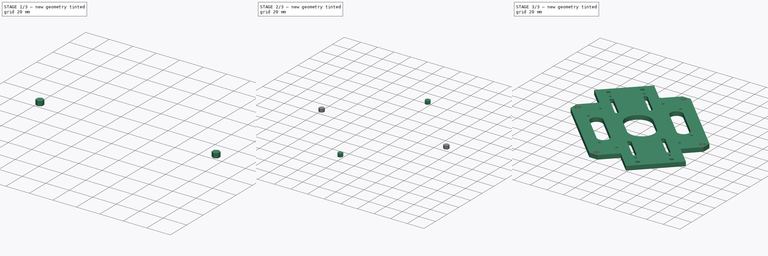
[diagram: build sequence overview — one tinted view per stage of 3, left to right]
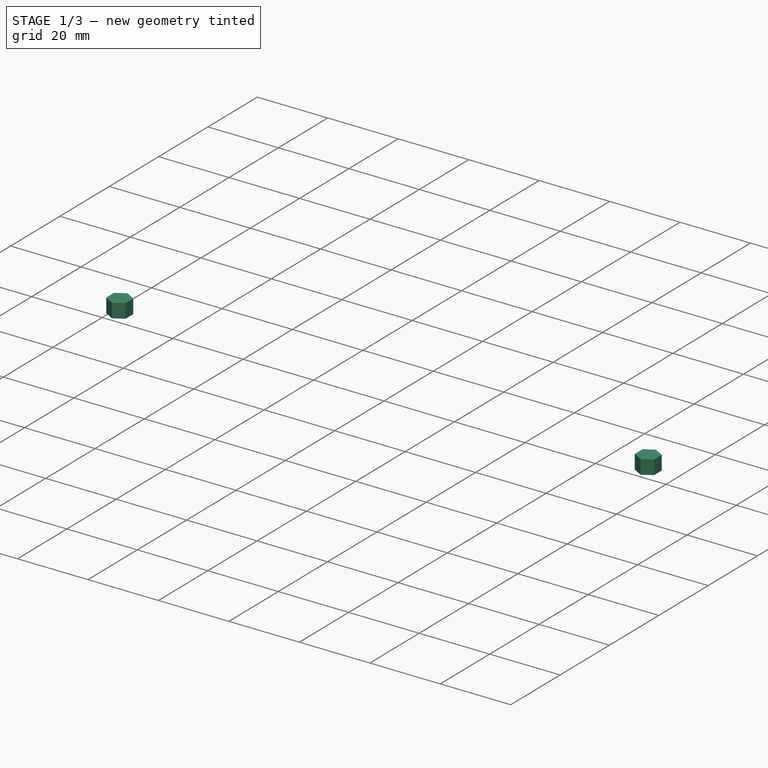
[diagram: stage 1 of 3 — iso view after this stage's code; geometry added in this stage tinted green]
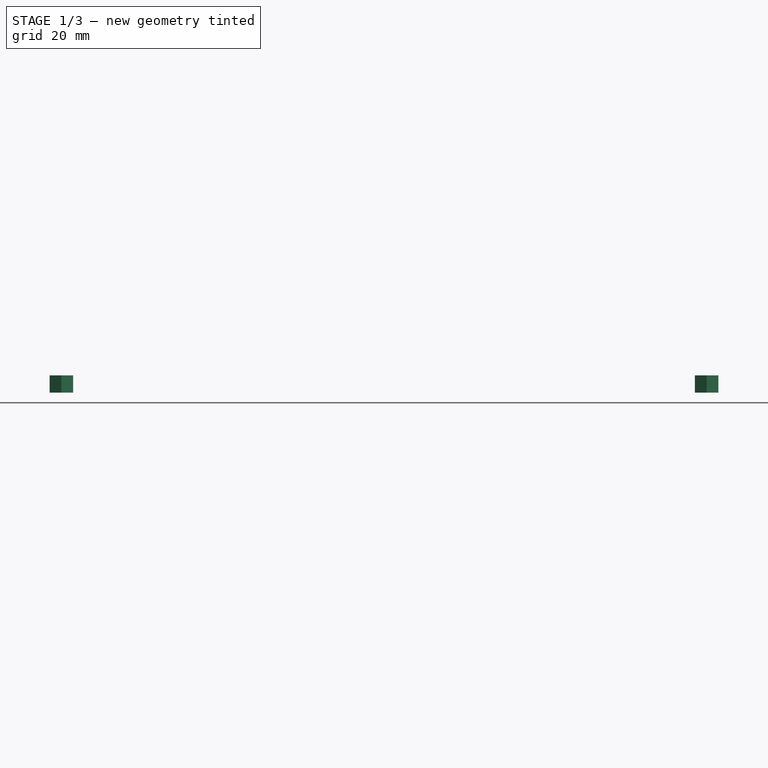
[diagram: stage 1 of 3 — front view after this stage's code; geometry added in this stage tinted green]
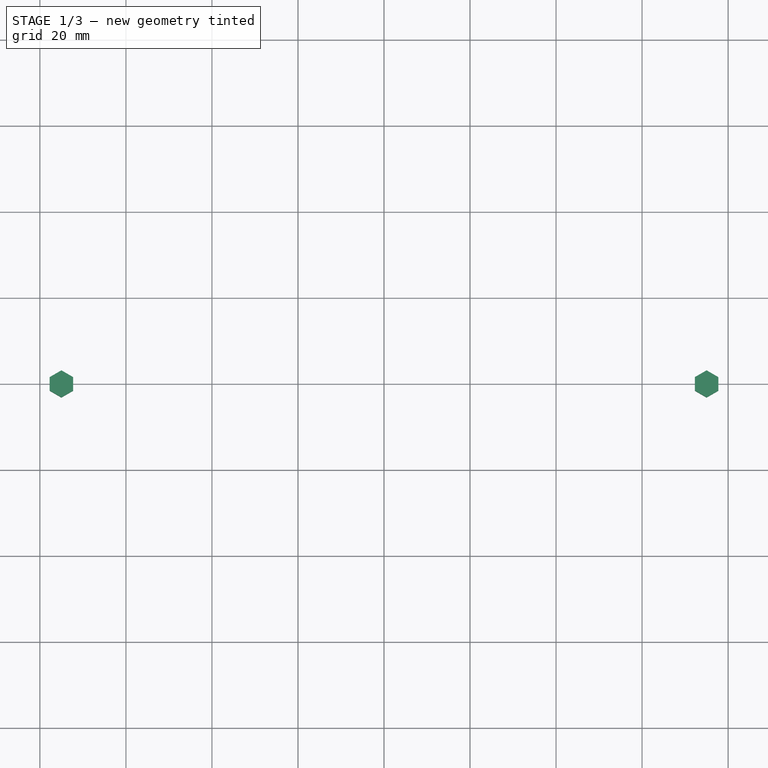
[diagram: stage 1 of 3 — top view after this stage's code; geometry added in this stage tinted green]
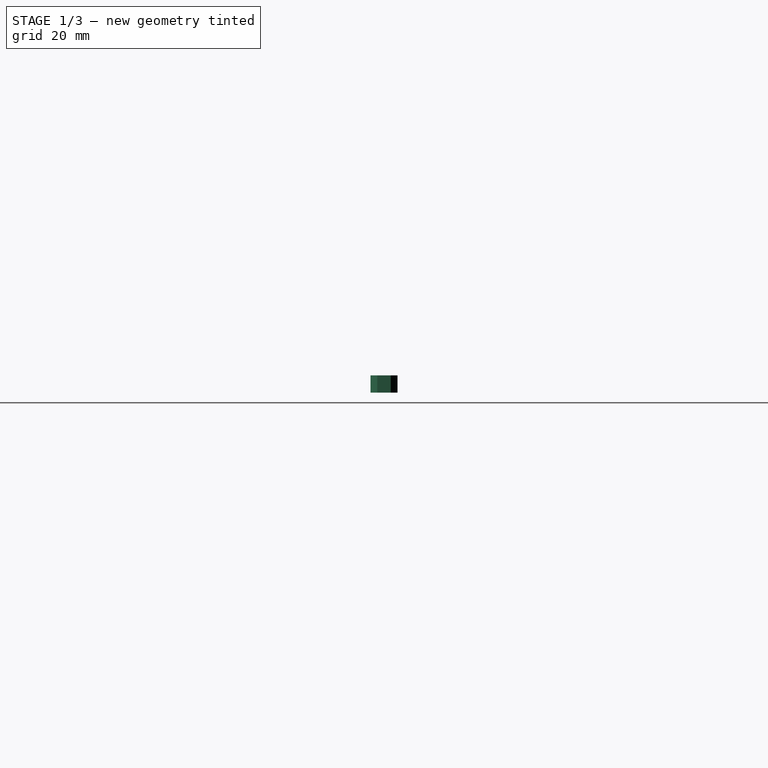
[diagram: stage 1 of 3 — right view after this stage's code; geometry added in this stage tinted green]
FCSTD DOCUMENT  (FreeCAD 0.16R6698 (Git))
Label: body-bottom
License: All rights reserved
LicenseURL: http://en.wikipedia.org/wiki/All_rights_reserved
objects: Part::Extrusion×5, Sketcher::SketchObject×2, Part::MultiFuse×1, Part::Cut×1
note: 9 computed .brp shape members not serialized (recipe doc carries the construction recipe); baked Part::Feature solids carry a one-line shape summary decoded from their .brp

FEATURE [Part::Extrusion] Extrude003
  Base = -> Sketch001
  Dir = (0,0,4)
  Placement = pos=(-80,0,2) rot=(0,0,1;1.5708rad)
  Solid = true
FEATURE [Part::Extrusion] Extrude004
  Base = -> Sketch001
  Dir = (0,0,4)
  Placement = pos=(80,0,2) rot=(0,0,-1;1.5708rad)
  Solid = true
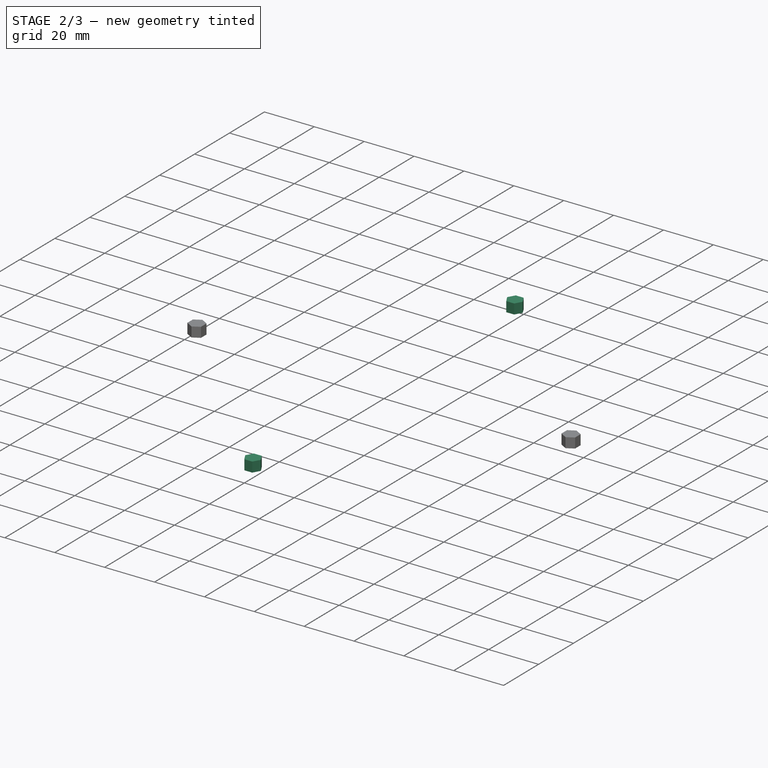
[diagram: stage 2 of 3 — iso view after this stage's code; geometry added in this stage tinted green]
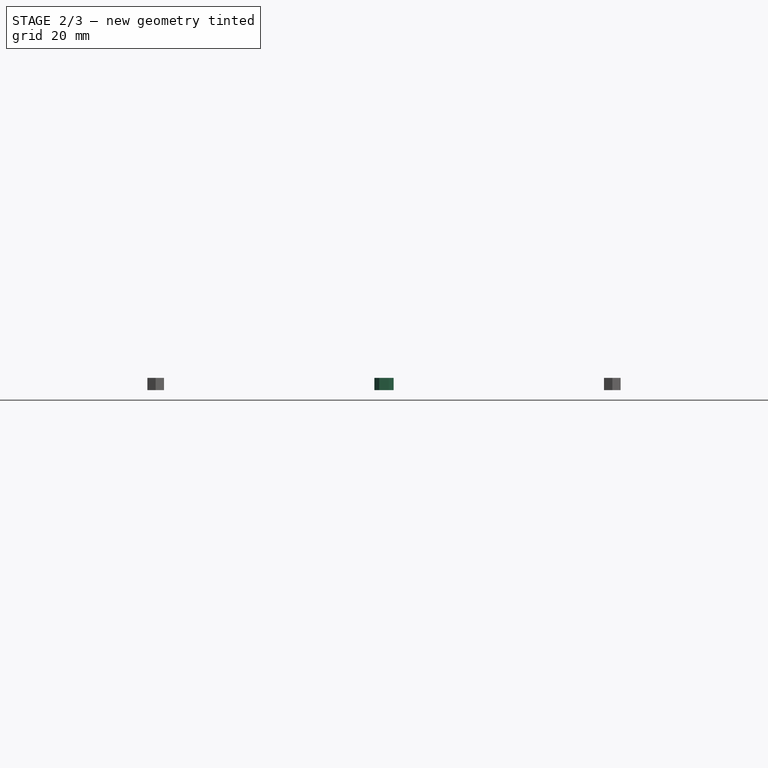
[diagram: stage 2 of 3 — front view after this stage's code; geometry added in this stage tinted green]
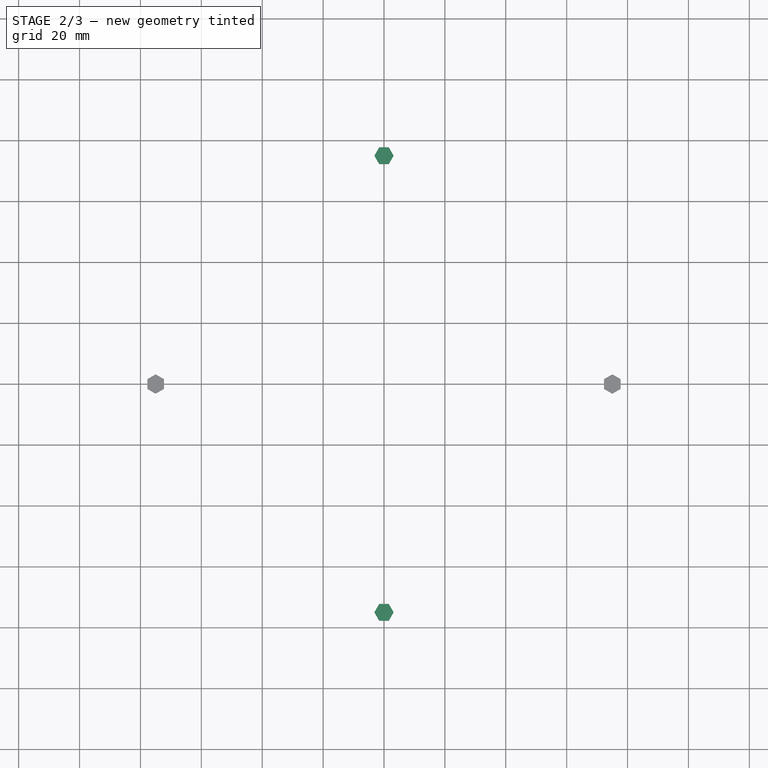
[diagram: stage 2 of 3 — top view after this stage's code; geometry added in this stage tinted green]
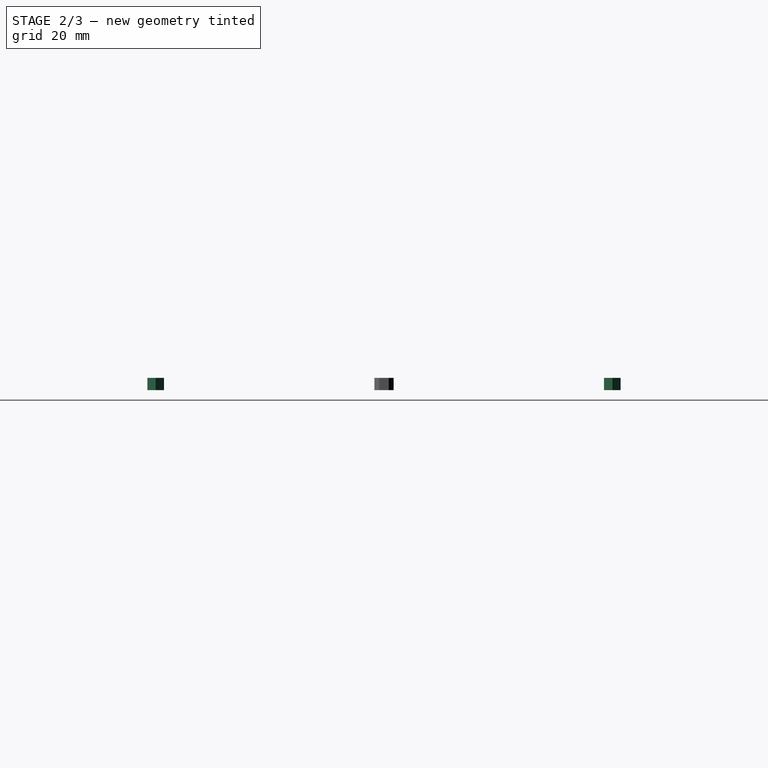
[diagram: stage 2 of 3 — right view after this stage's code; geometry added in this stage tinted green]
FEATURE [Sketcher::SketchObject] Sketch001
  sketch-geometry (7):
    g0: LineSegment StartX=1.575 StartY=-7.72798 StartZ=0 EndX=3.15 EndY=-5 EndZ=0
    g1: LineSegment StartX=3.15 StartY=-5 StartZ=0 EndX=1.575 EndY=-2.27202 EndZ=0
    g2: LineSegment StartX=1.575 StartY=-2.27202 StartZ=0 EndX=-1.575 EndY=-2.27202 EndZ=0
    g3: LineSegment StartX=-1.575 StartY=-2.27202 StartZ=0 EndX=-3.15 EndY=-5 EndZ=0
    g4: LineSegment StartX=-3.15 StartY=-5 StartZ=0 EndX=-1.575 EndY=-7.72798 EndZ=0
    g5: LineSegment StartX=-1.575 StartY=-7.72798 StartZ=0 EndX=1.575 EndY=-7.72798 EndZ=0
    g6: Circle [constr] CenterX=0 CenterY=-5 CenterZ=0 NormalX=0 NormalY=0 NormalZ=1 Radius=3.15
  constraints (17):
    c: Coincident(g0,g1)
    c: Coincident(g1,g2)
    c: Coincident(g2,g3)
    c: Coincident(g3,g4)
    c: Coincident(g4,g5)
    c: Coincident(g5,g0)
    c: Equal(g0, g1-g5) x5
    c: PointOnObject(g0,g6)
    c: PointOnObject(g1,g6)
    c: PointOnObject(g2,g6)
    c: PointOnObject(g3,g6)
    c: PointOnObject(g4,g6)
    c: PointOnObject(g5,g6)
    c: PointOnObject(g6,g-2)
    c: Horizontal(g5)
    c: DistanceY(g6,g-1) = 5
    c: Radius(g6) = 3.15
FEATURE [Part::Extrusion] Extrude001
  Base = -> Sketch001
  Dir = (0,0,4)
  Placement = pos=(0,80,2) rot=(0,0,1;0rad)
  Solid = true
FEATURE [Part::Extrusion] Extrude002
  Base = -> Sketch001
  Dir = (0,0,4)
  Placement = pos=(0,-80,2) rot=(0,0,1;3.14159rad)
  Solid = true
FEATURE [Part::MultiFuse] Fusion  label="FusionHexNuts"
  Shapes = -> [Extrude001,Extrude002,Extrude003,Extrude004]
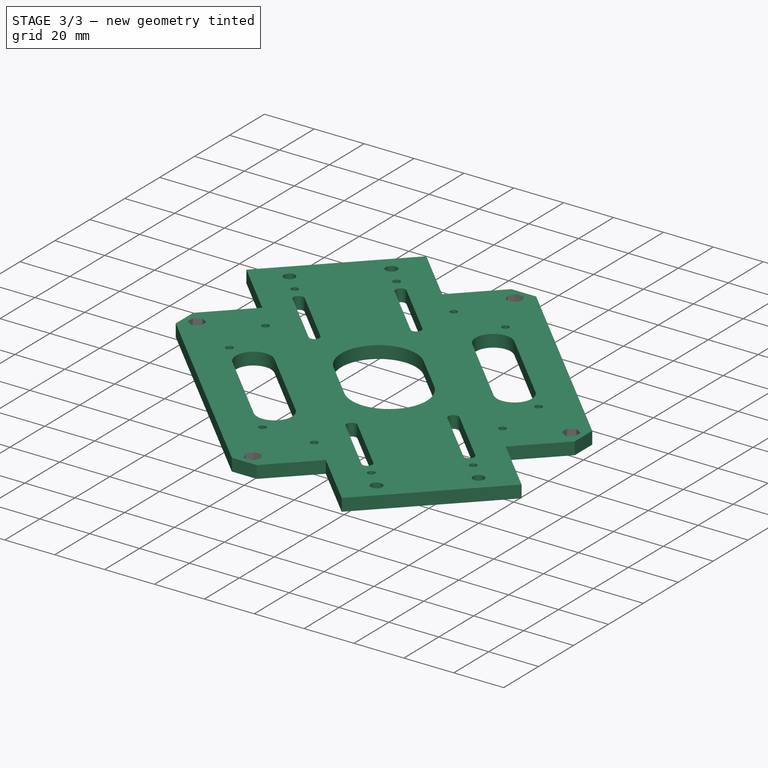
[diagram: stage 3 of 3 — iso view after this stage's code; geometry added in this stage tinted green]
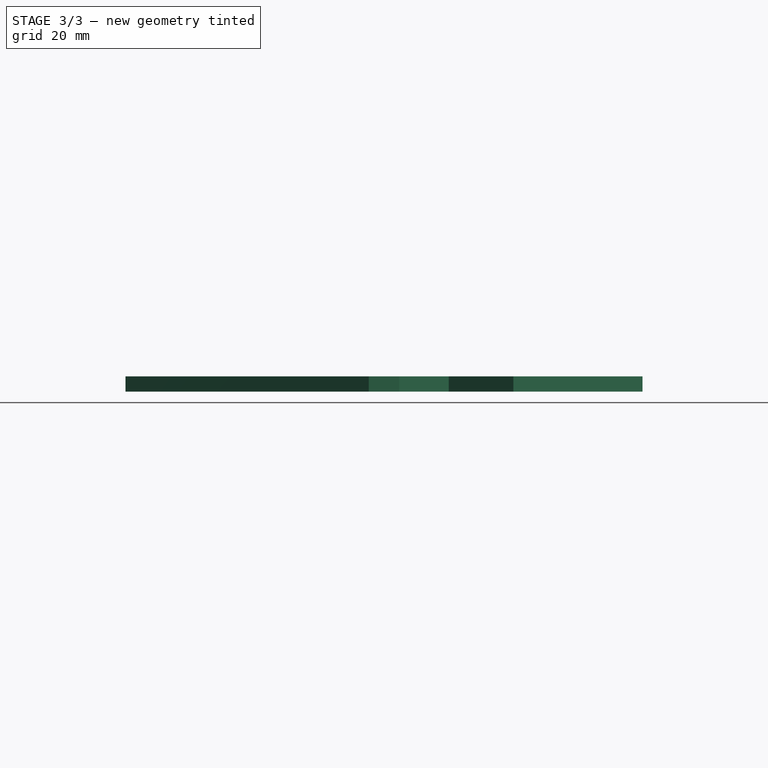
[diagram: stage 3 of 3 — front view after this stage's code; geometry added in this stage tinted green]
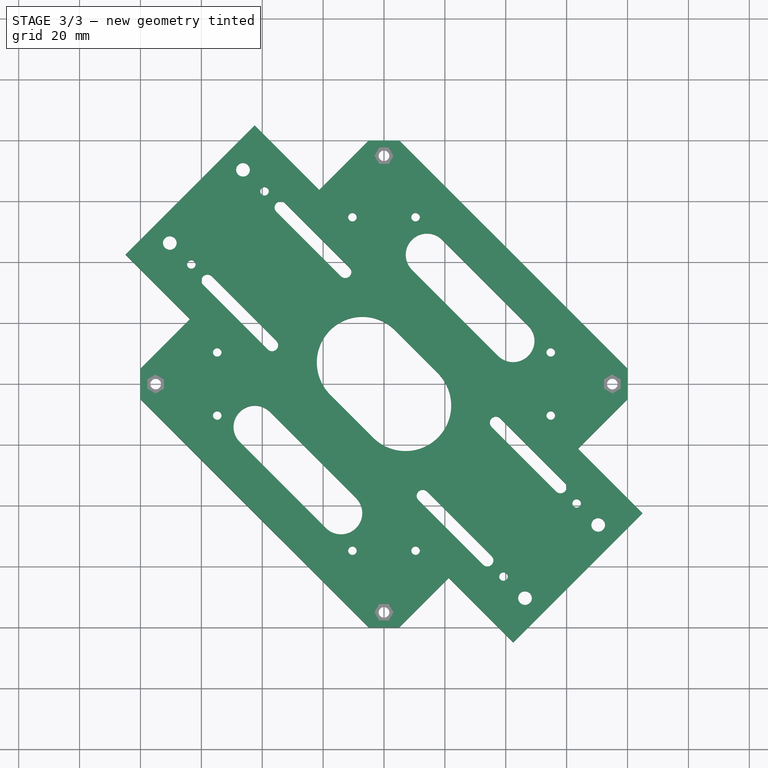
[diagram: stage 3 of 3 — top view after this stage's code; geometry added in this stage tinted green]
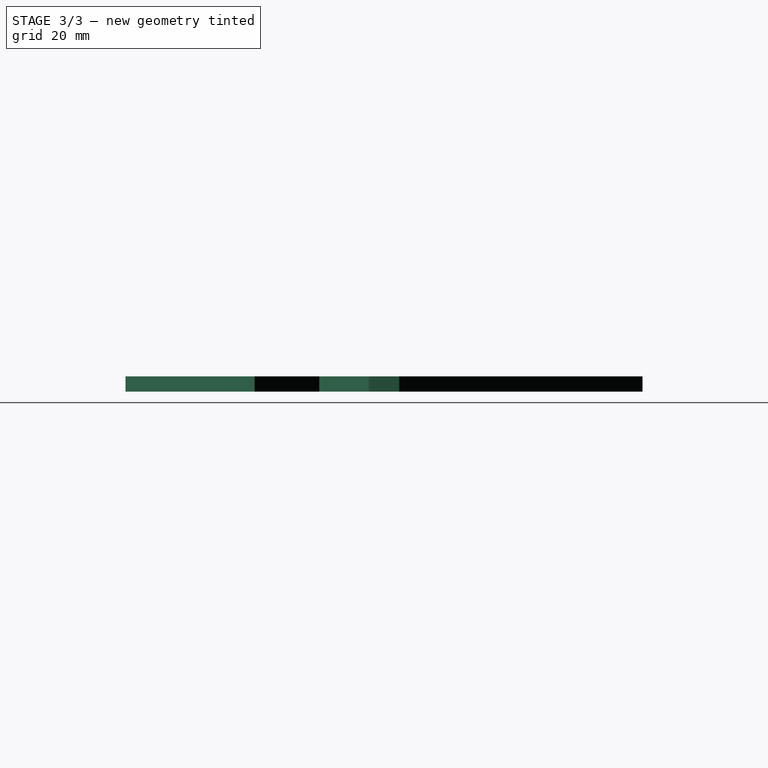
[diagram: stage 3 of 3 — right view after this stage's code; geometry added in this stage tinted green]
FEATURE [Sketcher::SketchObject] Sketch
  sketch-geometry (91):
    g0: Circle [constr] CenterX=0 CenterY=0 CenterZ=0 NormalX=0 NormalY=0 NormalZ=1 Radius=80.1561
    g1: LineSegment StartX=-5 StartY=80 StartZ=0 EndX=5 EndY=80 EndZ=0
    g2: LineSegment StartX=5 StartY=80 StartZ=0 EndX=80 EndY=5 EndZ=0
    g3: LineSegment StartX=80 StartY=5 StartZ=0 EndX=80 EndY=-5 EndZ=0
    g4: LineSegment StartX=5 StartY=-80 StartZ=0 EndX=-5 EndY=-80 EndZ=0
    g5: LineSegment StartX=-5 StartY=-80 StartZ=0 EndX=-80 EndY=-5 EndZ=0
    g6: LineSegment StartX=-80 StartY=-5 StartZ=0 EndX=-80 EndY=5 EndZ=0
    g7: Circle [constr] CenterX=0 CenterY=0 CenterZ=0 NormalX=0 NormalY=0 NormalZ=1 Radius=75
    g8: Circle CenterX=0 CenterY=75 CenterZ=0 NormalX=0 NormalY=0 NormalZ=1 Radius=1.75
    g9: Circle CenterX=-75 CenterY=0 CenterZ=0 NormalX=0 NormalY=0 NormalZ=1 Radius=1.75
    g10: Circle CenterX=75 CenterY=0 CenterZ=0 NormalX=0 NormalY=0 NormalZ=1 Radius=1.75
    g11: Circle CenterX=0 CenterY=-75 CenterZ=0 NormalX=0 NormalY=0 NormalZ=1 Radius=1.75
    g12: LineSegment [constr] StartX=-14.1421 StartY=-42.4264 StartZ=0 EndX=-42.4264 EndY=-14.1421 EndZ=0
    g13: ArcOfCircle CenterX=-42.4264 CenterY=-14.1421 CenterZ=0 NormalX=0 NormalY=0 NormalZ=1 Radius=7 StartAngle=0.785398 EndAngle=3.92699
    g14: ArcOfCircle CenterX=-14.1421 CenterY=-42.4264 CenterZ=0 NormalX=0 NormalY=0 NormalZ=1 Radius=7 StartAngle=3.92699 EndAngle=7.06858
    g15: LineSegment StartX=-47.3762 StartY=-19.0919 StartZ=0 EndX=-19.0919 EndY=-47.3762 EndZ=0
    g16: LineSegment StartX=-37.4767 StartY=-9.19239 StartZ=0 EndX=-9.19239 EndY=-37.4767 EndZ=0
    g17: ArcOfCircle CenterX=14.1421 CenterY=42.4264 CenterZ=0 NormalX=0 NormalY=0 NormalZ=1 Radius=7 StartAngle=0.785398 EndAngle=3.92699
    g18: ArcOfCircle CenterX=42.4264 CenterY=14.1421 CenterZ=0 NormalX=0 NormalY=0 NormalZ=1 Radius=7 StartAngle=3.92699 EndAngle=7.06858
    g19: LineSegment StartX=9.19239 StartY=37.4767 StartZ=0 EndX=37.4767 EndY=9.19239 EndZ=0
    g20: LineSegment StartX=19.0919 StartY=47.3762 StartZ=0 EndX=47.3762 EndY=19.0919 EndZ=0
    g21: LineSegment StartX=-5 StartY=80 StartZ=0 EndX=-21.2868 EndY=63.7132 EndZ=0
    g22: LineSegment StartX=-21.2868 StartY=63.7132 StartZ=0 EndX=-42.5 EndY=84.9264 EndZ=0
    g23: LineSegment StartX=-42.5 StartY=84.9264 StartZ=0 EndX=-84.9264 EndY=42.5 EndZ=0
    g24: LineSegment StartX=-84.9264 StartY=42.5 StartZ=0 EndX=-63.7132 EndY=21.2868 EndZ=0
    g25: LineSegment StartX=-63.7132 StartY=21.2868 StartZ=0 EndX=-80 EndY=5 EndZ=0
    g26: LineSegment StartX=80 StartY=-5 StartZ=0 EndX=63.7132 EndY=-21.2868 EndZ=0
    g27: LineSegment StartX=63.7132 StartY=-21.2868 StartZ=0 EndX=84.9264 EndY=-42.5 EndZ=0
    g28: LineSegment StartX=84.9264 StartY=-42.5 StartZ=0 EndX=42.5 EndY=-84.9264 EndZ=0
    g29: LineSegment StartX=42.5 StartY=-84.9264 StartZ=0 EndX=21.2868 EndY=-63.7132 EndZ=0
    g30: LineSegment StartX=21.2868 StartY=-63.7132 StartZ=0 EndX=5 EndY=-80 EndZ=0
    g31: Circle [constr] CenterX=0 CenterY=0 CenterZ=0 NormalX=0 NormalY=0 NormalZ=1 Radius=55.75
    g32: LineSegment [constr] StartX=-54.7761 StartY=10.375 StartZ=0 EndX=-54.7761 EndY=-10.375 EndZ=0
    g33: LineSegment [constr] StartX=-10.375 StartY=54.7761 StartZ=0 EndX=10.375 EndY=54.7761 EndZ=0
    g34: LineSegment [constr] StartX=54.7761 StartY=10.375 StartZ=0 EndX=54.7761 EndY=-10.375 EndZ=0
    g35: LineSegment [constr] StartX=-10.375 StartY=-54.7761 StartZ=0 EndX=10.375 EndY=-54.7761 EndZ=0
    g36: Circle CenterX=-54.7761 CenterY=10.375 CenterZ=0 NormalX=0 NormalY=0 NormalZ=1 Radius=1.4
    g37: Circle CenterX=-54.7761 CenterY=-10.375 CenterZ=0 NormalX=0 NormalY=0 NormalZ=1 Radius=1.4
    g38: Circle CenterX=-10.375 CenterY=54.7761 CenterZ=0 NormalX=0 NormalY=0 NormalZ=1 Radius=1.4
    g39: Circle CenterX=10.375 CenterY=54.7761 CenterZ=0 NormalX=0 NormalY=0 NormalZ=1 Radius=1.4
    g40: Circle CenterX=54.7761 CenterY=10.375 CenterZ=0 NormalX=0 NormalY=0 NormalZ=1 Radius=1.4
    g41: Circle CenterX=54.7761 CenterY=-10.375 CenterZ=0 NormalX=0 NormalY=0 NormalZ=1 Radius=1.4
    g42: Circle CenterX=-10.375 CenterY=-54.7761 CenterZ=0 NormalX=0 NormalY=0 NormalZ=1 Radius=1.4
    g43: Circle CenterX=10.375 CenterY=-54.7761 CenterZ=0 NormalX=0 NormalY=0 NormalZ=1 Radius=1.4
    g44: LineSegment [constr] StartX=-88.3883 StartY=88.3883 StartZ=0 EndX=88.3883 EndY=-88.3883 EndZ=0
    g45: LineSegment [constr] StartX=-54.8008 StartY=54.8008 StartZ=0 EndX=-66.8216 EndY=42.78 EndZ=0
    g46: LineSegment [constr] StartX=-54.8008 StartY=54.8008 StartZ=0 EndX=-42.78 EndY=66.8216 EndZ=0
    g47: LineSegment [constr] StartX=-70.3571 StartY=46.3155 StartZ=0 EndX=-63.2861 EndY=39.2444 EndZ=0
    g48: LineSegment [constr] StartX=-46.3155 StartY=70.3571 StartZ=0 EndX=-39.2444 EndY=63.2861 EndZ=0
    g49: LineSegment [constr] StartX=54.8008 StartY=-54.8008 StartZ=0 EndX=42.78 EndY=-66.8216 EndZ=0
    g50: LineSegment [constr] StartX=54.8008 StartY=-54.8008 StartZ=0 EndX=66.8216 EndY=-42.78 EndZ=0
    g51: LineSegment [constr] StartX=39.2444 StartY=-63.2861 StartZ=0 EndX=46.3155 EndY=-70.3571 EndZ=0
    g52: LineSegment [constr] StartX=63.2861 StartY=-39.2444 StartZ=0 EndX=70.3571 EndY=-46.3155 EndZ=0
    g53: Circle CenterX=39.2444 CenterY=-63.2861 CenterZ=0 NormalX=0 NormalY=0 NormalZ=1 Radius=1.4
    g54: Circle CenterX=63.2861 CenterY=-39.2444 CenterZ=0 NormalX=0 NormalY=0 NormalZ=1 Radius=1.4
    g55: Circle CenterX=-63.2861 CenterY=39.2444 CenterZ=0 NormalX=0 NormalY=0 NormalZ=1 Radius=1.4
    g56: Circle CenterX=-39.2444 CenterY=63.2861 CenterZ=0 NormalX=0 NormalY=0 NormalZ=1 Radius=1.4
    g57: Circle CenterX=-70.3571 CenterY=46.3155 CenterZ=0 NormalX=0 NormalY=0 NormalZ=1 Radius=2.25
    g58: Circle CenterX=-46.3155 CenterY=70.3571 CenterZ=0 NormalX=0 NormalY=0 NormalZ=1 Radius=2.25
    g59: Circle CenterX=46.3155 CenterY=-70.3571 CenterZ=0 NormalX=0 NormalY=0 NormalZ=1 Radius=2.25
    g60: Circle CenterX=70.3571 CenterY=-46.3155 CenterZ=0 NormalX=0 NormalY=0 NormalZ=1 Radius=2.25
    g61: LineSegment [constr] StartX=28.2843 StartY=28.2843 StartZ=0 EndX=-28.2843 EndY=-28.2843 EndZ=0
    g62: LineSegment [constr] StartX=14.1421 StartY=42.4264 StartZ=0 EndX=42.4264 EndY=14.1421 EndZ=0
    g63: GeomPoint [constr] X=-12.0208 Y=-12.0208 Z=0
    g64: GeomPoint [constr] X=12.0208 Y=12.0208 Z=0
    g65: LineSegment [constr] StartX=-57.9828 StartY=33.9411 StartZ=0 EndX=33.9411 EndY=-57.9828 EndZ=0
    g66: LineSegment [constr] StartX=-33.9411 StartY=57.9828 StartZ=0 EndX=57.9828 EndY=-33.9411 EndZ=0
    g67: GeomPoint [constr] X=-36.7696 Y=12.7279 Z=0
    g68: GeomPoint [constr] X=12.7279 Y=-36.7696 Z=0
    g69: GeomPoint [constr] X=-12.7279 Y=36.7696 Z=0
    g70: GeomPoint [constr] X=36.7696 Y=-12.7279 Z=0
    g71: ArcOfCircle CenterX=-57.9828 CenterY=33.9411 CenterZ=0 NormalX=0 NormalY=0 NormalZ=1 Radius=2 StartAngle=0.785398 EndAngle=3.92699
    g72: ArcOfCircle CenterX=-36.7696 CenterY=12.7279 CenterZ=0 NormalX=0 NormalY=0 NormalZ=1 Radius=2 StartAngle=3.92699 EndAngle=7.06858
    g73: LineSegment StartX=-59.397 StartY=32.5269 StartZ=0 EndX=-38.1838 EndY=11.3137 EndZ=0
    g74: LineSegment StartX=-56.5685 StartY=35.3553 StartZ=0 EndX=-35.3553 EndY=14.1421 EndZ=0
    g75: ArcOfCircle CenterX=-33.9411 CenterY=57.9828 CenterZ=0 NormalX=0 NormalY=0 NormalZ=1 Radius=2 StartAngle=0.785398 EndAngle=3.92699
    g76: ArcOfCircle CenterX=-12.7279 CenterY=36.7696 CenterZ=0 NormalX=0 NormalY=0 NormalZ=1 Radius=2 StartAngle=3.92699 EndAngle=7.06858
    g77: LineSegment StartX=-35.3553 StartY=56.5685 StartZ=0 EndX=-14.1421 EndY=35.3553 EndZ=0
    g78: LineSegment StartX=-32.5269 StartY=59.397 StartZ=0 EndX=-11.3137 EndY=38.1838 EndZ=0
    g79: ArcOfCircle CenterX=12.7279 CenterY=-36.7696 CenterZ=0 NormalX=0 NormalY=0 NormalZ=1 Radius=2 StartAngle=0.785398 EndAngle=3.92699
    g80: ArcOfCircle CenterX=33.9411 CenterY=-57.9828 CenterZ=0 NormalX=0 NormalY=0 NormalZ=1 Radius=2 StartAngle=3.92699 EndAngle=7.06858
    g81: LineSegment StartX=11.3137 StartY=-38.1838 StartZ=0 EndX=32.5269 EndY=-59.397 EndZ=0
    g82: LineSegment StartX=14.1421 StartY=-35.3553 StartZ=0 EndX=35.3553 EndY=-56.5685 EndZ=0
    g83: ArcOfCircle CenterX=57.9828 CenterY=-33.9411 CenterZ=0 NormalX=0 NormalY=0 NormalZ=1 Radius=2 StartAngle=3.92699 EndAngle=7.06858
    g84: ArcOfCircle CenterX=36.7696 CenterY=-12.7279 CenterZ=0 NormalX=0 NormalY=0 NormalZ=1 Radius=2 StartAngle=0.785398 EndAngle=3.92699
    g85: LineSegment StartX=59.397 StartY=-32.5269 StartZ=0 EndX=38.1838 EndY=-11.3137 EndZ=0
    g86: LineSegment StartX=56.5685 StartY=-35.3553 StartZ=0 EndX=35.3553 EndY=-14.1421 EndZ=0
    g87: ArcOfCircle CenterX=-7.07107 CenterY=7.07107 CenterZ=0 NormalX=0 NormalY=0 NormalZ=1 Radius=15 StartAngle=0.785398 EndAngle=3.92699
    g88: ArcOfCircle CenterX=7.07107 CenterY=-7.07107 CenterZ=0 NormalX=0 NormalY=0 NormalZ=1 Radius=15 StartAngle=3.92699 EndAngle=7.06858
    g89: LineSegment StartX=-17.6777 StartY=-3.53553 StartZ=0 EndX=-3.53553 EndY=-17.6777 EndZ=0
    g90: LineSegment StartX=3.53553 StartY=17.6777 StartZ=0 EndX=17.6777 EndY=3.53553 EndZ=0
  constraints (234):
    c: Coincident(g0,g-1)
    c: PointOnObject(g1,g0)
    c: PointOnObject(g1,g0)
    c: Horizontal(g1)
    c: Coincident(g1,g2)
    c: PointOnObject(g2,g0)
    c: Coincident(g2,g3)
    c: PointOnObject(g3,g0)
    c: Vertical(g3)
    c: PointOnObject(g4,g0)
    c: PointOnObject(g4,g0)
    c: Horizontal(g4)
    c: Coincident(g4,g5)
    c: PointOnObject(g5,g0)
    c: Coincident(g5,g6)
    c: PointOnObject(g6,g0)
    c: Vertical(g6)
    c: Equal(g6,g4)
    c: Equal(g4,g3)
    c: Equal(g3,g1)
    c: Distance(g4) = 10
    c: DistanceX(g5,g3) = 160
    c: Coincident(g7,g-1)
    c: Radius(g7) = 75
    c: PointOnObject(g8,g7)
    c: PointOnObject(g9,g7)
    c: PointOnObject(g11,g7)
    c: PointOnObject(g9,g-1)
    c: PointOnObject(g8,g-2)
    c: PointOnObject(g11,g-2)
    c: PointOnObject(g10,g7)
    c: PointOnObject(g10,g-1)
    c: Radius(g9) = 1.75
    c: Equal(g9,g11)
    c: Equal(g9,g10)
    c: Equal(g9,g8)
    c: Tangent(g13,g16) = 1.5708
    c: Tangent(g13,g15) = -1.5708
    c: Tangent(g15,g14) = -1.5708
    c: Tangent(g16,g14) = 1.5708
    c: Equal(g13,g14)
    c: Radius(g13) = 7
    c: Tangent(g17,g20) = 1.5708
    c: Tangent(g17,g19) = -1.5708
    c: Tangent(g19,g18) = -1.5708
    c: Tangent(g20,g18) = 1.5708
    c: Equal(g17,g18)
    c: Equal(g17,g13)
    c: Coincident(g1,g21)
    c: Coincident(g21,g22)
    c: Coincident(g22,g23)
    c: Coincident(g23,g24)
    c: Coincident(g24,g25)
    c: Coincident(g25,g6)
    c: Equal(g25,g21)
    c: Equal(g24,g22)
    c: Distance(g23) = 60
    c: Distance(g22) = 30
    c: Coincident(g3,g26)
    c: Coincident(g26,g27)
    c: Coincident(g27,g28)
    c: Coincident(g28,g29)
    c: Coincident(g29,g30)
    c: Coincident(g30,g4)
    c: Equal(g30,g26)
    c: Equal(g29,g27)
    c: Equal(g28,g23)
    c: Equal(g29,g24)
    c: Distance(g12) = 40
    c: Coincident(g31,g-1)
    c: Radius(g31) = 55.75
    c: PointOnObject(g32,g31)
    c: PointOnObject(g32,g31)
    c: Vertical(g32)
    c: Distance(g32) = 20.75
    c: PointOnObject(g33,g31)
    c: PointOnObject(g33,g31)
    c: Horizontal(g33)
    c: PointOnObject(g34,g31)
    c: PointOnObject(g34,g31)
    c: Vertical(g34)
    c: PointOnObject(g35,g31)
    c: PointOnObject(g35,g31)
    c: Horizontal(g35)
    c: Equal(g35,g34)
    c: Equal(g34,g33)
    c: Equal(g33,g32)
    c: Coincident(g36,g32)
    c: Coincident(g37,g32)
    c: Coincident(g38,g33)
    c: Coincident(g39,g33)
    c: Coincident(g40,g34)
    c: Coincident(g41,g34)
    c: Coincident(g42,g35)
    c: Coincident(g43,g35)
    c: Radius(g37) = 1.4
    c: Equal(g37,g36)
    c: Equal(g37,g42)
    c: Equal(g37,g43)
    c: Equal(g37,g41)
    c: Equal(g37,g40)
    c: Equal(g37,g39)
    c: Equal(g37,g38)
    c: Distance(g44) = 250
    c: Symmetric(g44,g44,g-1)
    c: Angle(g44,g-1) = 0.785398
    c: Parallel(g24,g22)
    c: Parallel(g22,g44)
    c: Parallel(g29,g27)
    c: Parallel(g27,g44)
    c: Perpendicular(g21,g22)
    c: Perpendicular(g24,g25)
    c: Perpendicular(g29,g30)
    c: Perpendicular(g26,g27)
    c: PointOnObject(g45,g44)
    c: Coincident(g46,g45)
    c: Perpendicular(g44,g45)
    c: Perpendicular(g44,g46)
    c: Equal(g45,g46)
    c: Distance(g45) = 17
    c: Distance(g-1,g45) = 77.5
    c: PointOnObject(g45,g47)
    c: PointOnObject(g46,g48)
    c: Equal(g47,g48)
    c: Parallel(g47,g48)
    c: Parallel(g48,g44)
    c: Symmetric(g47,g47,g45)
    c: Symmetric(g48,g48,g46)
    c: Distance(g47) = 10
    c: PointOnObject(g49,g44)
    c: Coincident(g50,g49)
    c: Perpendicular(g44,g49)
    c: Perpendicular(g44,g50)
    c: PointOnObject(g49,g51)
    c: PointOnObject(g50,g52)
    c: Equal(g49,g50)
    c: Equal(g50,g45)
    c: Parallel(g51,g52)
    c: Parallel(g52,g44)
    c: Symmetric(g51,g51,g49)
    c: Symmetric(g52,g52,g50)
    c: Equal(g51,g52)
    c: Equal(g52,g47)
    c: Symmetric(g49,g45,g-1)
    c: Coincident(g53,g51)
    c: Coincident(g54,g52)
    c: Coincident(g55,g47)
    c: Radius(g55) = 1.4
    c: Equal(g55,g56)
    c: Equal(g55,g53)
    c: Equal(g55,g54)
    c: Coincident(g56,g48)
    c: Coincident(g57,g47)
    c: Coincident(g58,g48)
    c: Coincident(g59,g51)
    c: Coincident(g60,g52)
    c: Radius(g59) = 2.25
    c: Equal(g59,g60)
    c: Equal(g59,g57)
    c: Equal(g59,g58)
    c: Symmetric(g61,g61,g-1)
    c: Perpendicular(g44,g61)
    c: Distance(g61) = 80
    c: PointOnObject(g61,g12)
    c: Coincident(g12,g13)
    c: Coincident(g62,g17)
    c: Coincident(g62,g18)
    c: PointOnObject(g61,g62)
    c: Perpendicular(g61,g62)
    c: Perpendicular(g61,g12)
    c: Equal(g12,g62)
    c: Symmetric(g17,g18,g61)
    c: Symmetric(g12,g12,g61)
    c: Coincident(g14,g12)
    c: PointOnObject(g63,g61)
    c: PointOnObject(g64,g61)
    c: Symmetric(g64,g63,g-1)
    c: Distance(g63,g64) = 34
    c: Equal(g65,g66)
    c: Perpendicular(g61,g65)
    c: Perpendicular(g61,g66)
    c: Symmetric(g65,g65,g63)
    c: Symmetric(g66,g66,g64)
    c: Distance(g66) = 130
    c: PointOnObject(g67,g65)
    c: PointOnObject(g68,g65)
    c: PointOnObject(g69,g66)
    c: PointOnObject(g70,g66)
    c: Distance(g69,g70) = 70
    c: Symmetric(g69,g70,g64)
    c: Distance(g67,g68) = 70
    c: Symmetric(g67,g68,g63)
    c: Tangent(g71,g74) = 1.5708
    c: Tangent(g71,g73) = -1.5708
    c: Tangent(g73,g72) = -1.5708
    c: Tangent(g74,g72) = 1.5708
    c: Equal(g71,g72)
    c: Coincident(g71,g65)
    c: Tangent(g75,g78) = 1.5708
    c: Tangent(g75,g77) = -1.5708
    c: Tangent(g77,g76) = -1.5708
    c: Tangent(g78,g76) = 1.5708
    c: Equal(g75,g76)
    c: Coincident(g75,g66)
    c: Coincident(g72,g67)
    c: Coincident(g76,g69)
    c: Tangent(g79,g82) = 1.5708
    c: Tangent(g79,g81) = -1.5708
    c: Tangent(g81,g80) = -1.5708
    c: Tangent(g82,g80) = 1.5708
    c: Equal(g79,g80)
    c: Tangent(g83,g86) = 1.5708
    c: Tangent(g83,g85) = -1.5708
    c: Tangent(g85,g84) = -1.5708
    c: Tangent(g86,g84) = 1.5708
    c: Equal(g83,g84)
    c: Coincident(g83,g66)
    c: Coincident(g80,g65)
    c: Coincident(g79,g68)
    c: Coincident(g84,g70)
    c: Radius(g83) = 2
    c: Equal(g83,g80)
    c: Equal(g83,g75)
    c: Equal(g83,g71)
    c: Tangent(g87,g90) = 1.5708
    c: Tangent(g87,g89) = -1.5708
    c: Tangent(g89,g88) = -1.5708
    c: Tangent(g90,g88) = 1.5708
    c: Equal(g87,g88)
    c: PointOnObject(g87,g44)
    c: PointOnObject(g88,g44)
    c: Symmetric(g87,g88,g-1)
    c: Radius(g87) = 15
    c: Distance(g90) = 20
FEATURE [Part::Extrusion] Extrude
  Base = -> Sketch
  Dir = (0,0,5)
  Solid = true
FEATURE [Part::Cut] Cut
  Base = -> Extrude
  Tool = -> Fusion
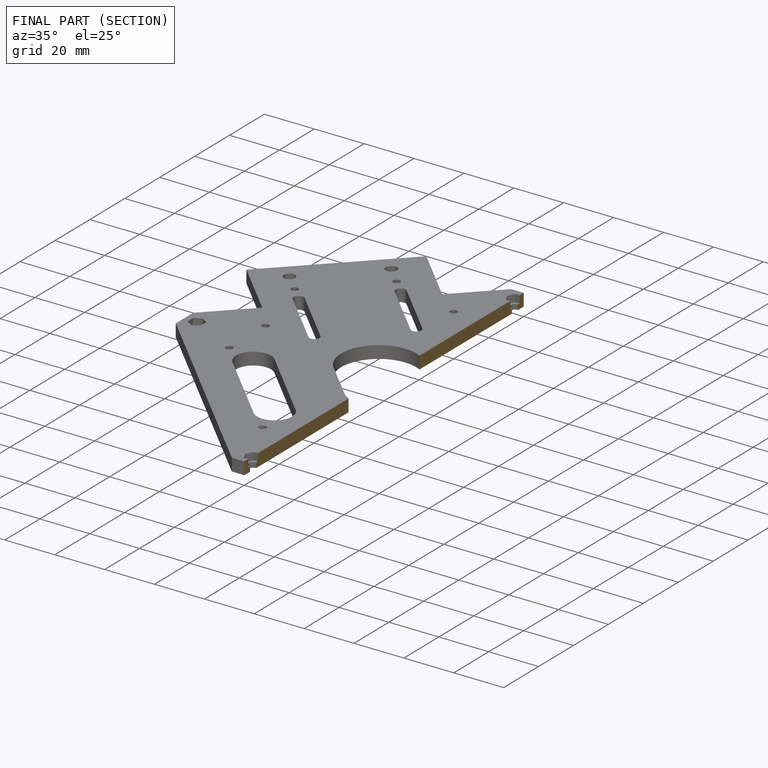
[diagram: finished part — half-section view (interior)]
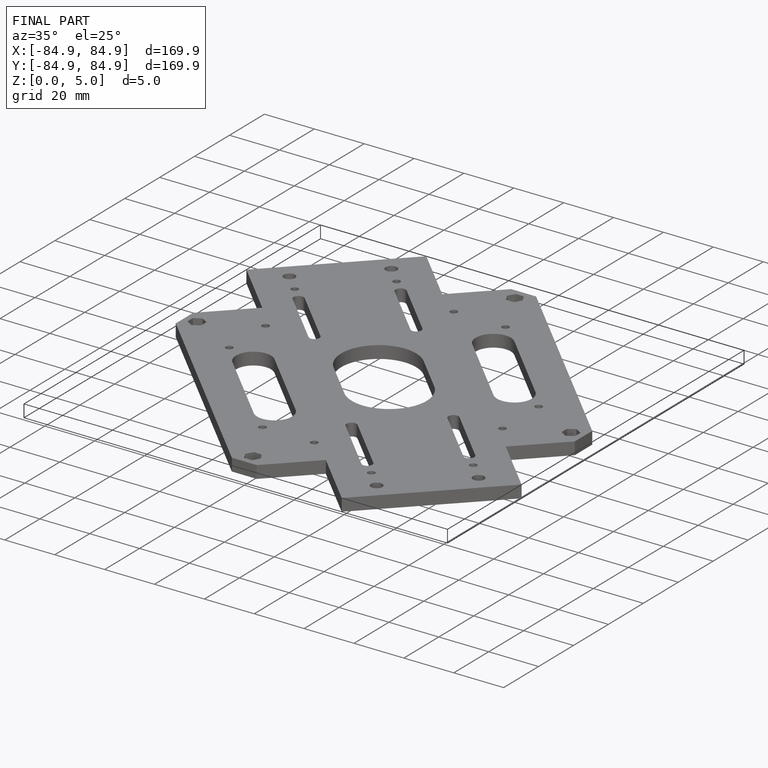
[diagram: finished part — iso view with bounding-box wireframe]
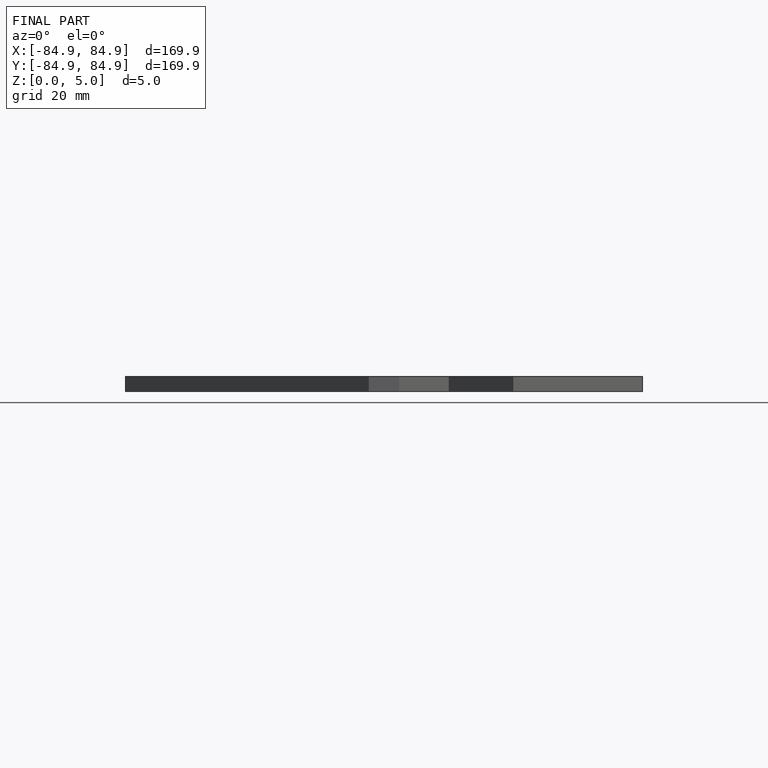
[diagram: finished part — front view with bounding-box wireframe]
